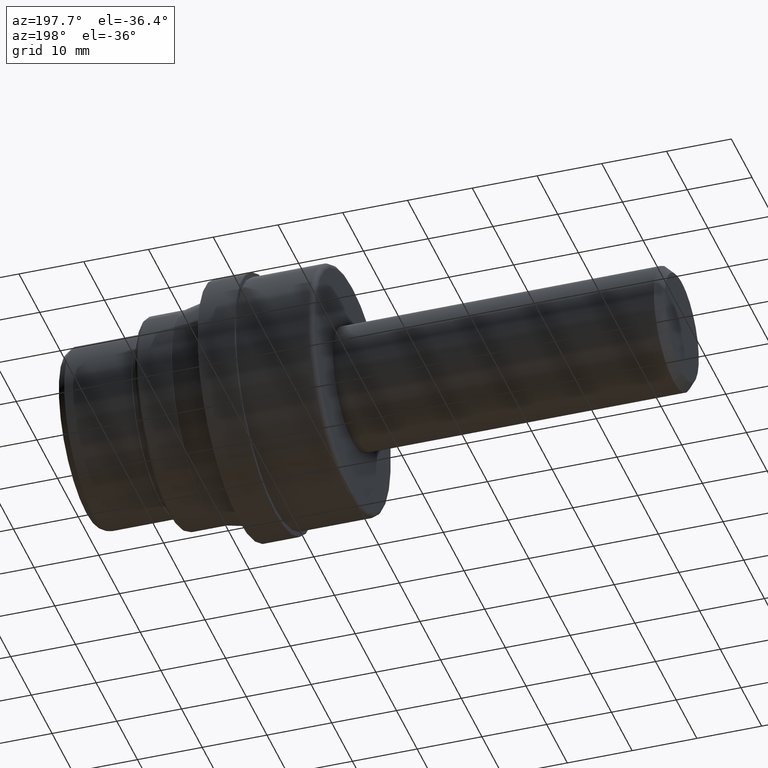
[diagram: clean part render]
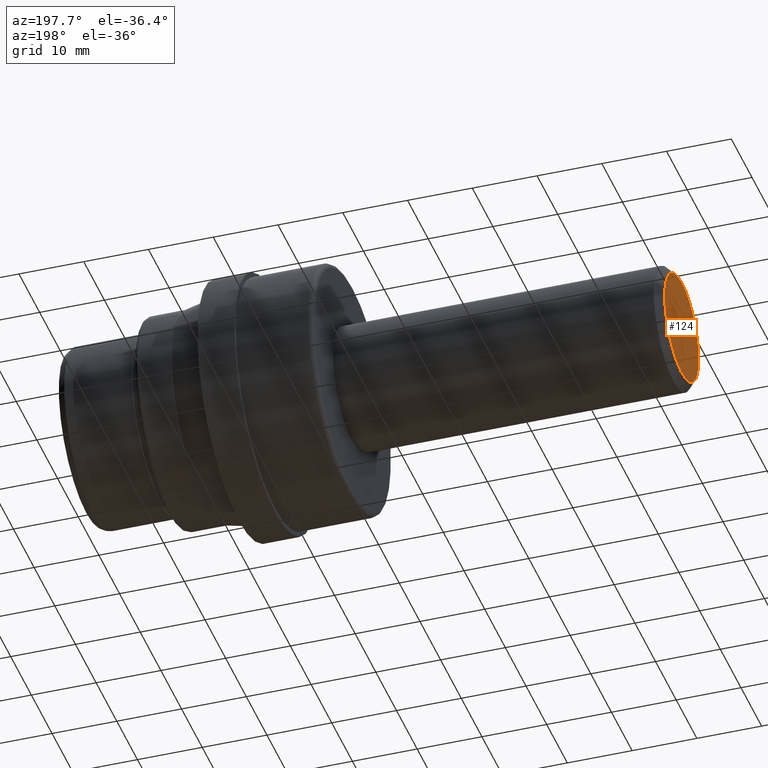
[diagram: same view with one face highlighted and labeled with its STEP entity id]
A machine part, auxiliary view. The second image highlights one B-rep face of the part: STEP entity #124.
In plain terms, the highlighted planar face has unit normal (-1, 0, 0).
Its self-contained STEP definition (entity closure, byte-faithful):
#17 = EDGE_LOOP ( 'NONE', ( #710, #175 ) ) ;
#39 = CARTESIAN_POINT ( 'NONE',  ( 0.0000000000000000000, 0.0000000000000000000, 0.0000000000000000000 ) ) ;
#108 = DIRECTION ( 'NONE',  ( 0.0000000000000000000, 0.0000000000000000000, 1.000000000000000000 ) ) ;
#124 = ADVANCED_FACE ( 'NONE', ( #803 ), #1034, .T. ) ;
#160 = DIRECTION ( 'NONE',  ( 0.0000000000000000000, 0.0000000000000000000, -1.000000000000000000 ) ) ;
#175 = ORIENTED_EDGE ( 'NONE', *, *, #900, .F. ) ;
#200 = DIRECTION ( 'NONE',  ( -1.000000000000000000, 0.0000000000000000000, 0.0000000000000000000 ) ) ;
#232 = DIRECTION ( 'NONE',  ( 1.000000000000000000, -0.0000000000000000000, -0.0000000000000000000 ) ) ;
#246 = CIRCLE ( 'NONE', #988, 0.3248499999999998056 ) ;
#438 = CARTESIAN_POINT ( 'NONE',  ( 0.0000000000000000000, 0.0000000000000000000, -0.3248499999999998056 ) ) ;
#487 = VERTEX_POINT ( 'NONE', #809 ) ;
#592 = EDGE_CURVE ( 'NONE', #785, #487, #708, .T. ) ;
#630 = CARTESIAN_POINT ( 'NONE',  ( 0.0000000000000000000, 0.0000000000000000000, 0.0000000000000000000 ) ) ;
#708 = CIRCLE ( 'NONE', #715, 0.3248499999999998056 ) ;
#710 = ORIENTED_EDGE ( 'NONE', *, *, #592, .F. ) ;
#711 = DIRECTION ( 'NONE',  ( 0.0000000000000000000, 0.0000000000000000000, -1.000000000000000000 ) ) ;
#715 = AXIS2_PLACEMENT_3D ( 'NONE', #791, #232, #711 ) ;
#785 = VERTEX_POINT ( 'NONE', #438 ) ;
#791 = CARTESIAN_POINT ( 'NONE',  ( 0.0000000000000000000, 0.0000000000000000000, 0.0000000000000000000 ) ) ;
#793 = DIRECTION ( 'NONE',  ( 1.000000000000000000, -0.0000000000000000000, -0.0000000000000000000 ) ) ;
#803 = FACE_OUTER_BOUND ( 'NONE', #17, .T. ) ;
#809 = CARTESIAN_POINT ( 'NONE',  ( 0.0000000000000000000, 4.284426826817014275E-17, 0.3248499999999998056 ) ) ;
#864 = AXIS2_PLACEMENT_3D ( 'NONE', #39, #200, #108 ) ;
#900 = EDGE_CURVE ( 'NONE', #487, #785, #246, .T. ) ;
#988 = AXIS2_PLACEMENT_3D ( 'NONE', #630, #793, #160 ) ;
#1034 = PLANE ( 'NONE',  #864 ) ;